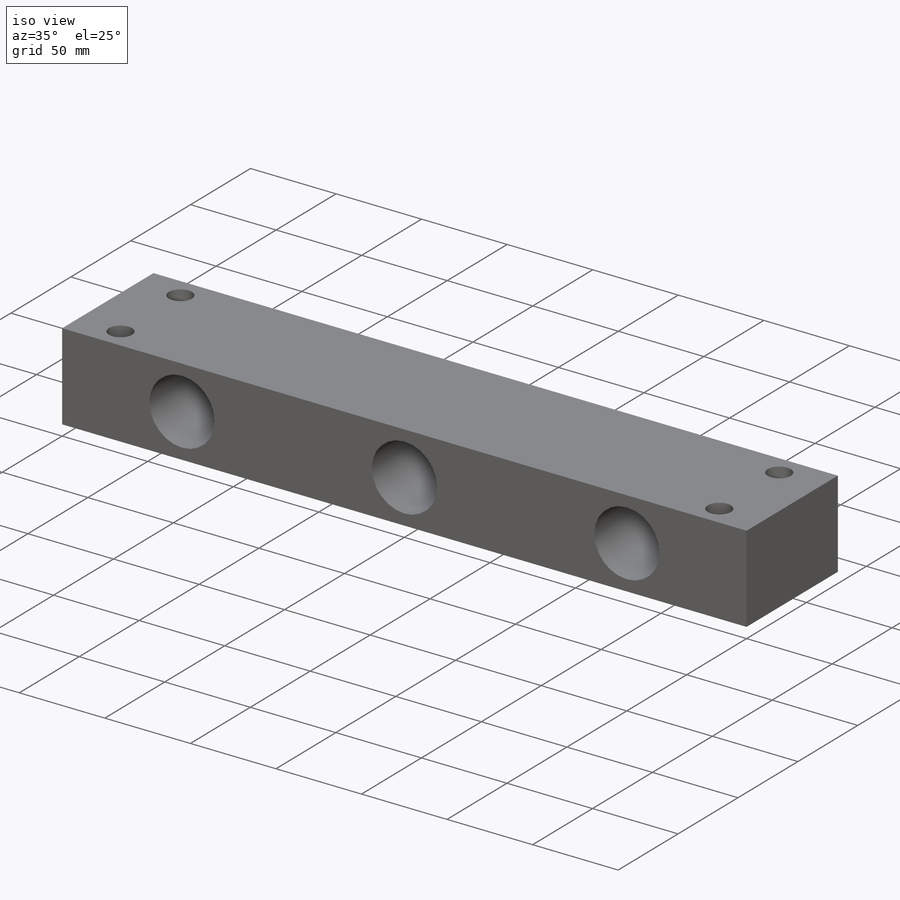
[diagram: iso view]
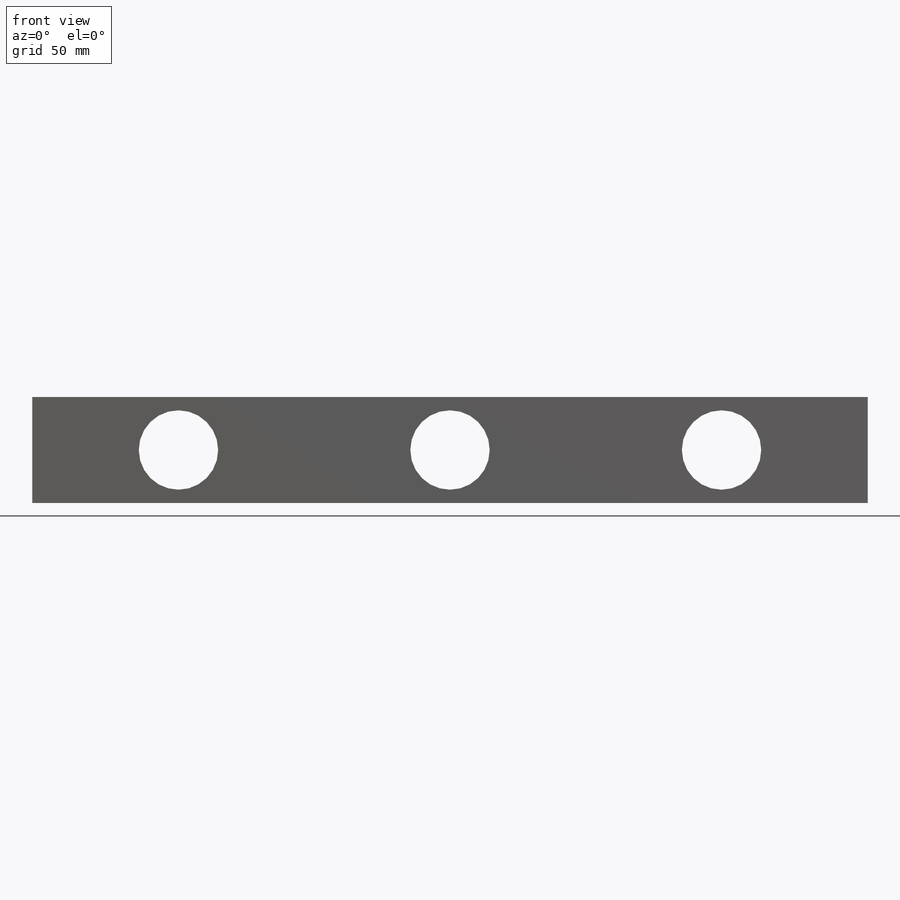
[diagram: front view]
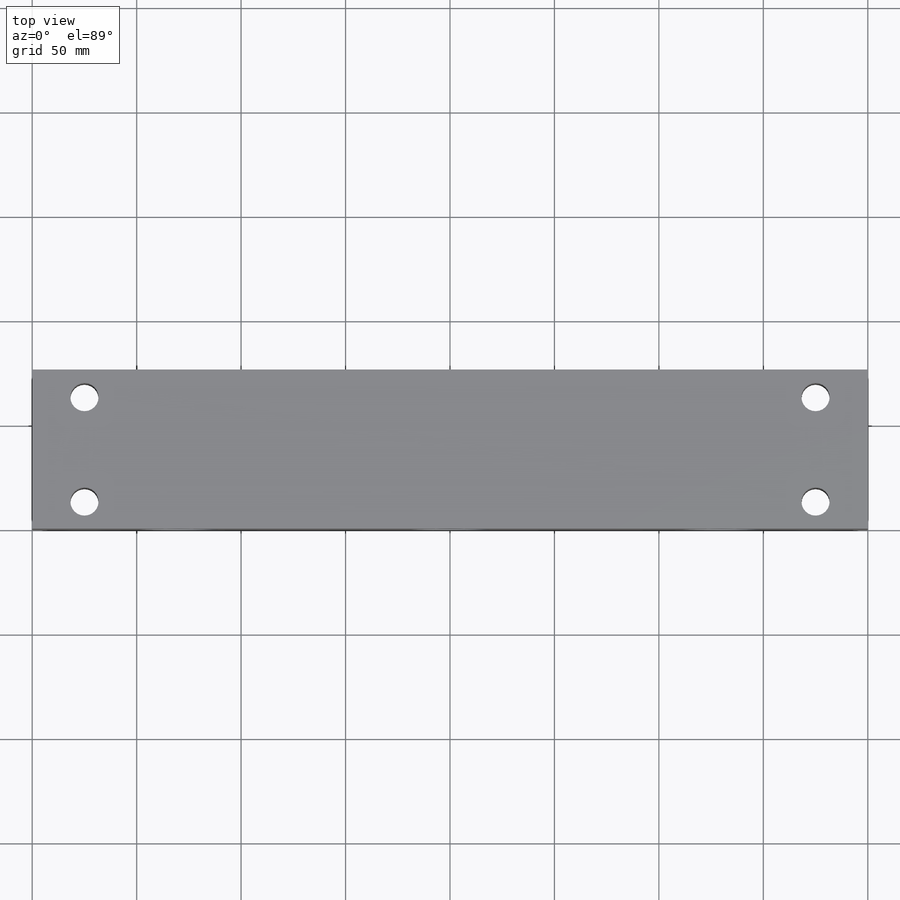
[diagram: top view]
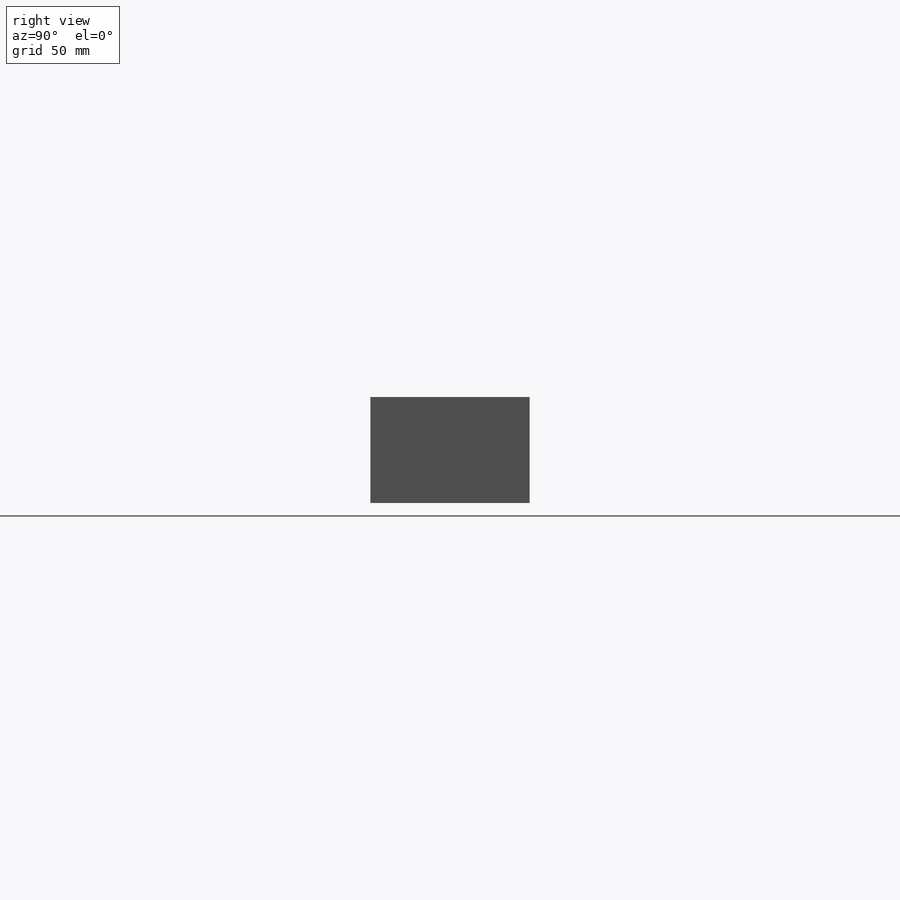
[diagram: right view]
SOLIDWORKS PART (.sldprt)
format: sldprt  version: not decoded by parser v0  size: 174,592 bytes
history: native  units: mm
features: sketch x3, cut_extrude x2, material x1, extrude x1 (+16 scaffold rows collapsed)
feature tree (23):
  scaffold x16  (default folders/planes/origin — collapsed)
  material  "Material <not specified>"
  sketch  "Sketch1"  dims[D1=76.2mm D2=400.0mm]
  extrude  "Boss-Extrude1"  Depth=50.8mm
  sketch  "Sketch3"  dims[D5=6.0mm D1=200.0mm D2=38.0mm D3=350.0mm D4=50.0mm]
  cut_extrude  "Cut-Extrude2"  Depth=50.8mm
  sketch  "Sketch5"  dims[c1.D3=~25.262847mm c1.D5=19.05mm c1.D1=25.4mm c1.D2=200.0mm c2.D3=130.0mm c2.D4=130.0mm c2.D5=25.4mm]
  cut_extrude  "Cut-Extrude3"  [1 undecoded]
decode coverage: 5 of 6 modeling features carry decoded parameters
note: ~ marks probable driven/reference dimensions
note: 1 parameter value undecoded
note: suppression state not decoded; provenance and decode notes live in map.json
